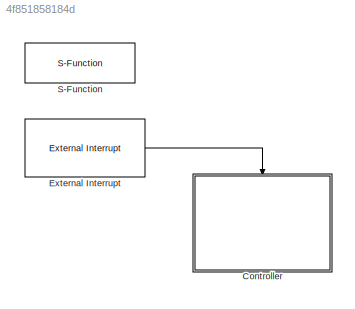
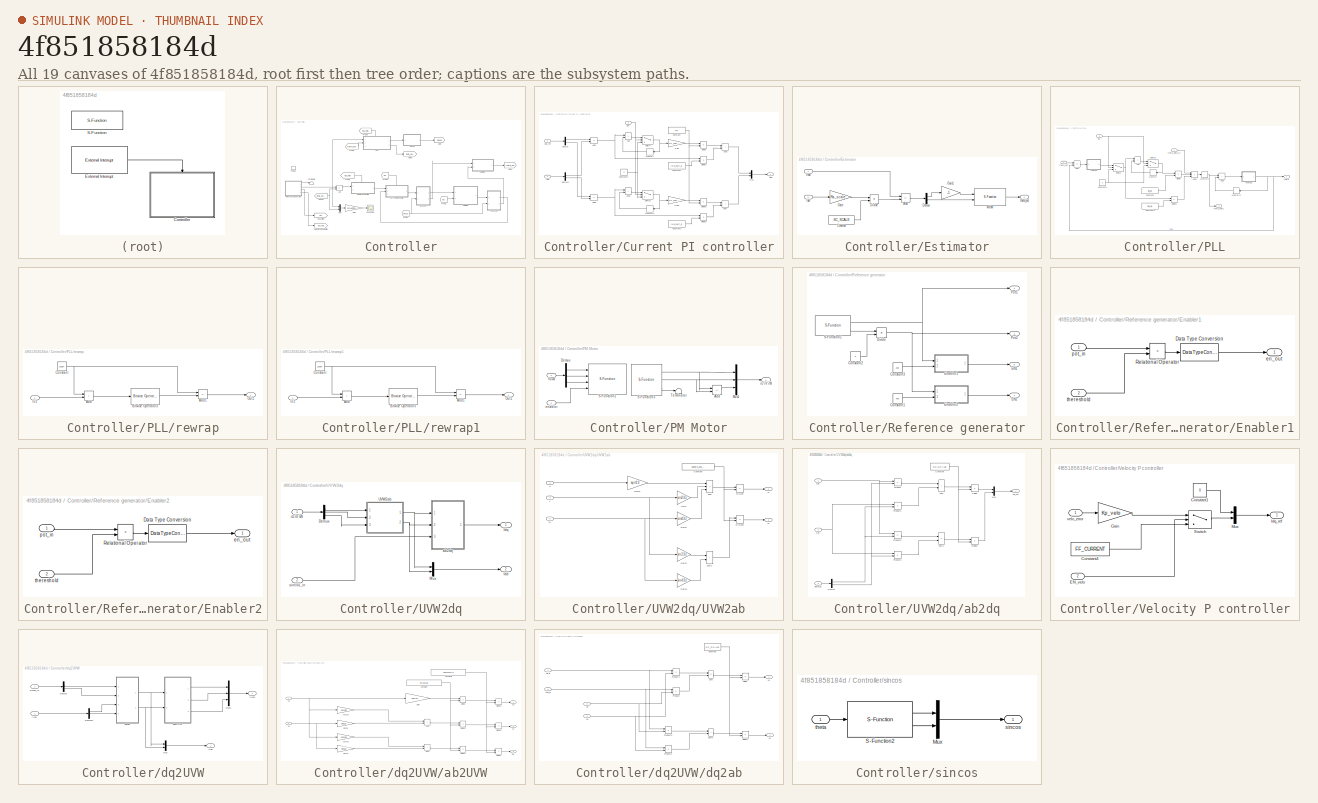
[diagram: thumbnail index - all 19 canvases of the model, root first then tree order]
MODEL slx_4f851858184d
KIND model
CONFIG AbsTol = auto
CONFIG EnableMultiTasking = off
CONFIG FixedStep = ts
CONFIG MaxStep = auto
CONFIG MinStep = auto
CONFIG RelTol = 1e-3
CONFIG SampleTimeConstraint = Unconstrained
CONFIG Solver = FixedStepDiscrete
CONFIG SolverName = FixedStepDiscrete
CONFIG StartTime = 0.0
CONFIG StopTime = inf
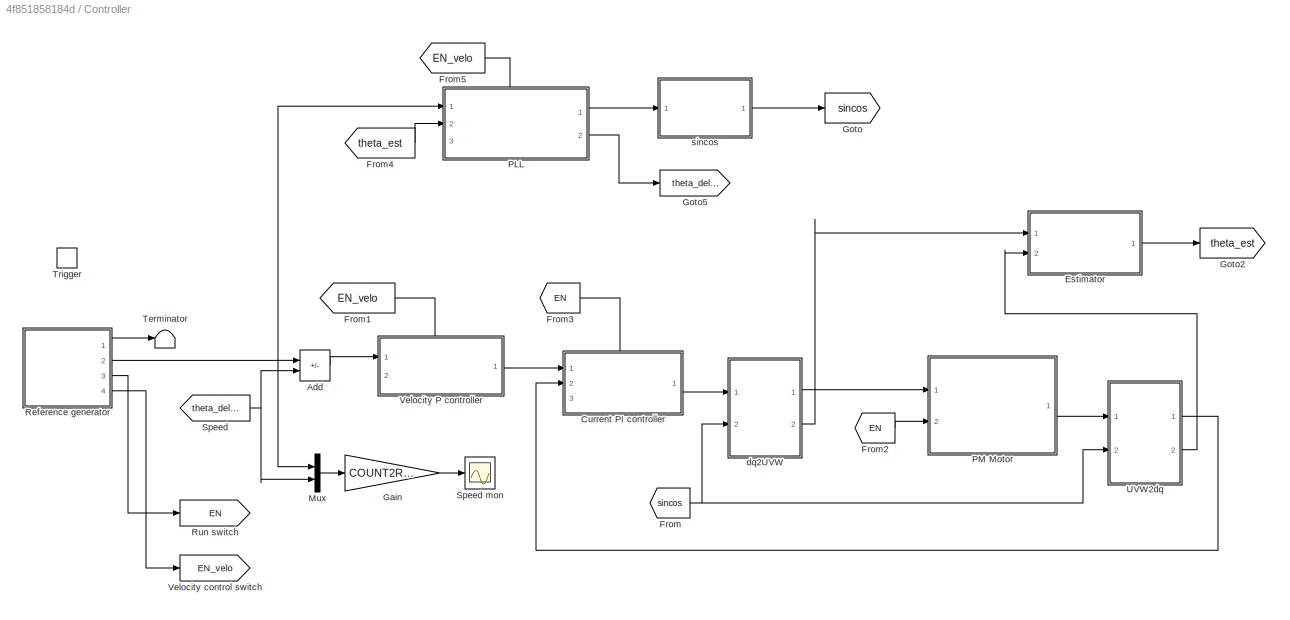
BLOCK [SubSystem] Controller
  Ports = [0, 0, 0, 1]
  RequestExecContextInheritance = off
BLOCK [Sum] Controller/Add
  IconShape = rectangular
  Inputs = +-
  Ports = [2, 1]
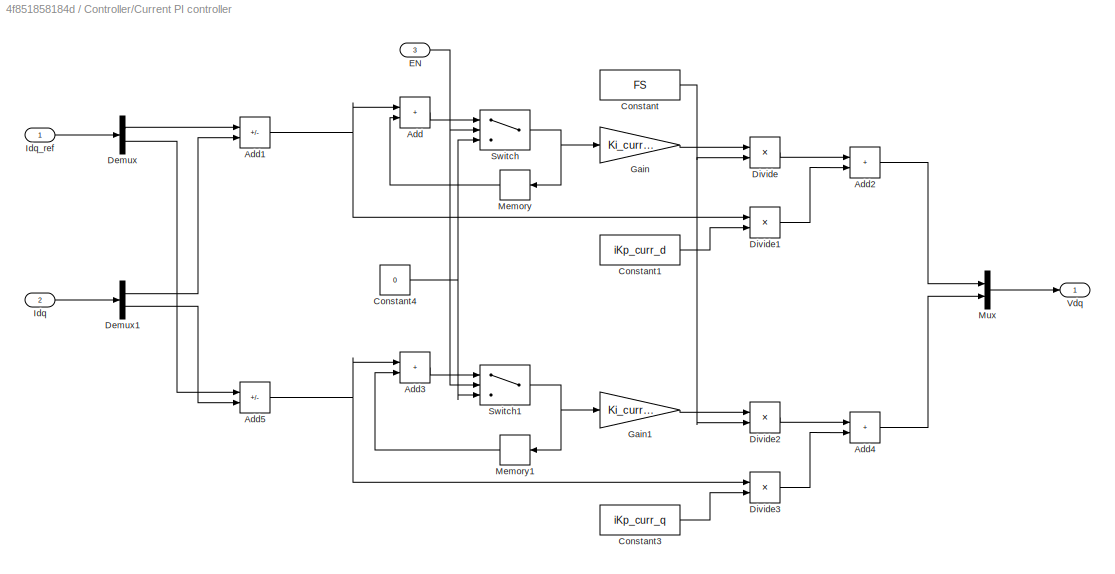
BLOCK [SubSystem] Controller/Current PI controller
  PortSchema = {"entries":[{"content":{"sides":[{"content":{"connectorIds":["In1","In2"]},"type":"ConnectorPlacement.EquallySpacedRectSide","uuid":"51bdd515-79d8-44f5-b943-076c1de5691d"},{"content":{"connectorIds":["Out1"],"side":"RIGHT"},"type":"ConnectorPlacement.EquallySpacedRectSide","uuid":"02ded229-b196-46a0-b1f1-559478ee2a5f"},{"content":{"connectorIds":["In3"],"side":"TOP"},"type":"ConnectorPlacement.Equ...<+253ch>
  Ports = [3, 1]
  RequestExecContextInheritance = off
BLOCK [Sum] Controller/Current PI controller/Add
  IconShape = rectangular
  Ports = [2, 1]
BLOCK [Sum] Controller/Current PI controller/Add1
  IconShape = rectangular
  Inputs = +-
  Ports = [2, 1]
BLOCK [Sum] Controller/Current PI controller/Add2
  IconShape = rectangular
  Ports = [2, 1]
BLOCK [Sum] Controller/Current PI controller/Add3
  IconShape = rectangular
  Ports = [2, 1]
BLOCK [Sum] Controller/Current PI controller/Add4
  IconShape = rectangular
  Ports = [2, 1]
BLOCK [Sum] Controller/Current PI controller/Add5
  IconShape = rectangular
  Inputs = +-
  Ports = [2, 1]
BLOCK [Constant] Controller/Current PI controller/Constant
  OutDataTypeStr = int32
  Value = FS
BLOCK [Constant] Controller/Current PI controller/Constant1
  OutDataTypeStr = int32
  Value = iKp_curr_d
BLOCK [Constant] Controller/Current PI controller/Constant3
  OutDataTypeStr = int32
  Value = iKp_curr_q
BLOCK [Constant] Controller/Current PI controller/Constant4
  OutDataTypeStr = int32
  Value = 0
BLOCK [Demux] Controller/Current PI controller/Demux
  Outputs = 2
  Ports = [1, 2]
BLOCK [Demux] Controller/Current PI controller/Demux1
  Outputs = 2
  Ports = [1, 2]
BLOCK [Product] Controller/Current PI controller/Divide
  Inputs = */
  Ports = [2, 1]
BLOCK [Product] Controller/Current PI controller/Divide1
  Inputs = */
  Ports = [2, 1]
BLOCK [Product] Controller/Current PI controller/Divide2
  Inputs = */
  Ports = [2, 1]
BLOCK [Product] Controller/Current PI controller/Divide3
  Inputs = */
  Ports = [2, 1]
BLOCK [Inport] Controller/Current PI controller/EN
  Port = 3
BLOCK [Gain] Controller/Current PI controller/Gain
  Gain = Ki_curr_d
  OutDataTypeStr = int32
  ParamDataTypeStr = int32
BLOCK [Gain] Controller/Current PI controller/Gain1
  Gain = Ki_curr_q
  OutDataTypeStr = int32
  ParamDataTypeStr = int32
BLOCK [Inport] Controller/Current PI controller/Idq
  Port = 2
BLOCK [Inport] Controller/Current PI controller/Idq_ref
BLOCK [Memory] Controller/Current PI controller/Memory
  InheritSampleTime = on
  NameLocation = top
BLOCK [Memory] Controller/Current PI controller/Memory1
  InheritSampleTime = on
  NameLocation = top
BLOCK [Mux] Controller/Current PI controller/Mux
  DisplayOption = bar
  Inputs = 2
  Ports = [2, 1]
BLOCK [Switch] Controller/Current PI controller/Switch
  Criteria = u2 > Threshold
  InputSameDT = off
  OutDataTypeStr = int32
  SaturateOnIntegerOverflow = off
BLOCK [Switch] Controller/Current PI controller/Switch1
  Criteria = u2 > Threshold
  InputSameDT = off
  OutDataTypeStr = int32
  SaturateOnIntegerOverflow = off
BLOCK [Outport] Controller/Current PI controller/Vdq
BLOCK [SubSystem] Controller/Estimator
  Ports = [2, 1]
  RequestExecContextInheritance = off
BLOCK [Sum] Controller/Estimator/Add
  IconShape = rectangular
  Inputs = +-
  Ports = [2, 1]
BLOCK [Constant] Controller/Estimator/Constant
  OutDataTypeStr = int32
  Value = SC_SCALE
BLOCK [Demux] Controller/Estimator/Demux
  Outputs = 2
  Ports = [1, 2]
BLOCK [Product] Controller/Estimator/Divide
  Inputs = */
  Ports = [2, 1]
BLOCK [Gain] Controller/Estimator/Gain
  Gain = Ra_scale
  OutDataTypeStr = int32
  ParamDataTypeStr = int32
BLOCK [Gain] Controller/Estimator/Gain1
  Gain = -1
  OutDataTypeStr = int32
  ParamDataTypeStr = int32
BLOCK [Inport] Controller/Estimator/Iab
  Port = 2
BLOCK [Inport] Controller/Estimator/Vab
BLOCK [S-Function] Controller/Estimator/arctan
  EnableBusSupport = off
  FunctionName = sfun_arctan
  Ports = [2, 1]
  SFcnIsStateOwnerBlock = off
  SFunctionDeploymentMode = off
BLOCK [Outport] Controller/Estimator/theta_est
BLOCK [From] Controller/From
  GotoTag = sincos
BLOCK [From] Controller/From1
  GotoTag = EN_velo
BLOCK [From] Controller/From2
  GotoTag = EN
BLOCK [From] Controller/From3
  GotoTag = EN
BLOCK [From] Controller/From4
  GotoTag = theta_est
BLOCK [From] Controller/From5
  GotoTag = EN_velo
BLOCK [Gain] Controller/Gain
  Gain = COUNT2RPM
  OutDataTypeStr = int32
  ParamDataTypeStr = int32
BLOCK [Goto] Controller/Goto
  GotoTag = sincos
BLOCK [Goto] Controller/Goto2
  GotoTag = theta_est
BLOCK [Goto] Controller/Goto5
  GotoTag = theta_delta
BLOCK [Mux] Controller/Mux
  DisplayOption = bar
  Inputs = 2
  Ports = [2, 1]
BLOCK [SubSystem] Controller/PLL
  PortSchema = {"entries":[{"content":{"sides":[{"content":{"connectorIds":["In1","In2"]},"type":"ConnectorPlacement.EquallySpacedRectSide","uuid":"c1279200-642a-4817-bff2-49f1fc45cae9"},{"content":{"connectorIds":["Out1","Out2"],"side":"RIGHT"},"type":"ConnectorPlacement.EquallySpacedRectSide","uuid":"60873783-c9ec-4a70-a078-e4f3fd5ab03e"},{"content":{"connectorIds":["In3"],"side":"TOP"},"type":"ConnectorPlacem...<+260ch>
  Ports = [3, 2]
  RequestExecContextInheritance = off
BLOCK [Sum] Controller/PLL/Add
  IconShape = rectangular
  Ports = [2, 1]
BLOCK [Sum] Controller/PLL/Add1
  IconShape = rectangular
  Inputs = +-
  Ports = [2, 1]
BLOCK [Sum] Controller/PLL/Add2
  IconShape = rectangular
  Inputs = +++
  Ports = [3, 1]
BLOCK [Sum] Controller/PLL/Add3
  IconShape = rectangular
  Ports = [2, 1]
BLOCK [Constant] Controller/PLL/Constant
  OutDataTypeStr = int32
  Value = iKi_pll
BLOCK [Constant] Controller/PLL/Constant3
  OutDataTypeStr = int32
  Value = iKp_pll
BLOCK [Constant] Controller/PLL/Constant4
  OutDataTypeStr = int32
  Value = 0
BLOCK [Product] Controller/PLL/Divide
  Inputs = */
  Ports = [2, 1]
BLOCK [Product] Controller/PLL/Divide1
  Inputs = */
  Ports = [2, 1]
BLOCK [Inport] Controller/PLL/EN
  Port = 3
BLOCK [Memory] Controller/PLL/Memory
  InheritSampleTime = on
  NameLocation = top
BLOCK [Memory] Controller/PLL/Memory1
  InheritSampleTime = on
  NameLocation = top
BLOCK [Memory] Controller/PLL/Memory2
  InheritSampleTime = on
BLOCK [Switch] Controller/PLL/Switch
  Criteria = u2 > Threshold
  InputSameDT = off
  OutDataTypeStr = int32
  SaturateOnIntegerOverflow = off
BLOCK [Switch] Controller/PLL/Switch1
  Criteria = u2 > Threshold
  InputSameDT = off
  OutDataTypeStr = int32
  SaturateOnIntegerOverflow = off
BLOCK [SubSystem] Controller/PLL/rewrap
  Ports = [1, 1]
  RequestExecContextInheritance = off
BLOCK [Sum] Controller/PLL/rewrap/Add
  IconShape = rectangular
  Ports = [2, 1]
BLOCK [Sum] Controller/PLL/rewrap/Add1
  IconShape = rectangular
  Inputs = -+
  Ports = [2, 1]
BLOCK [Reference] Controller/PLL/rewrap/Bitwise Operator3  REF=simulink/Logic and Bit
Operations/Bitwise
Operator
  Ports = [1, 1]
  SourceBlock = simulink/Logic and Bit\nOperations/Bitwise\nOperator
  SourceProductBaseCode = SL
  SourceType = Bitwise Operator
BLOCK [Constant] Controller/PLL/rewrap/Constant
  OutDataTypeStr = int32
  Value = 16384
BLOCK [Inport] Controller/PLL/rewrap/In1
BLOCK [Outport] Controller/PLL/rewrap/Out1
BLOCK [SubSystem] Controller/PLL/rewrap1
  Ports = [1, 1]
  RequestExecContextInheritance = off
BLOCK [Sum] Controller/PLL/rewrap1/Add
  IconShape = rectangular
  Ports = [2, 1]
BLOCK [Sum] Controller/PLL/rewrap1/Add1
  IconShape = rectangular
  Inputs = -+
  Ports = [2, 1]
BLOCK [Reference] Controller/PLL/rewrap1/Bitwise Operator3  REF=simulink/Logic and Bit
Operations/Bitwise
Operator
  Ports = [1, 1]
  SourceBlock = simulink/Logic and Bit\nOperations/Bitwise\nOperator
  SourceProductBaseCode = SL
  SourceType = Bitwise Operator
BLOCK [Constant] Controller/PLL/rewrap1/Constant
  OutDataTypeStr = int32
  Value = 16384
BLOCK [Inport] Controller/PLL/rewrap1/In1
BLOCK [Outport] Controller/PLL/rewrap1/Out1
BLOCK [Outport] Controller/PLL/theta
BLOCK [Outport] Controller/PLL/theta_delta
  Port = 2
BLOCK [Inport] Controller/PLL/theta_delta_ff
BLOCK [Inport] Controller/PLL/theta_est
  Port = 2
BLOCK [SubSystem] Controller/PM Motor
  Ports = [2, 1]
  RequestExecContextInheritance = off
BLOCK [Sum] Controller/PM Motor/Add
  IconShape = rectangular
  Inputs = --
  Ports = [2, 1]
BLOCK [Demux] Controller/PM Motor/Demux
  Outputs = 3
  Ports = [1, 3]
BLOCK [Mux] Controller/PM Motor/Mux1
  DisplayOption = bar
  Inputs = 3
  Ports = [3, 1]
BLOCK [S-Function] Controller/PM Motor/S-Function2
  EnableBusSupport = off
  FunctionName = sfun_pwmgen
  Ports = [4]
  SFcnIsStateOwnerBlock = off
  SFunctionDeploymentMode = off
BLOCK [S-Function] Controller/PM Motor/S-Function3
  EnableBusSupport = off
  FunctionName = sfun_read_current
  Ports = [0, 3]
  SFcnIsStateOwnerBlock = off
  SFunctionDeploymentMode = off
BLOCK [Terminator] Controller/PM Motor/Terminator
BLOCK [Inport] Controller/PM Motor/Vuvw
BLOCK [Inport] Controller/PM Motor/enabler
  Port = 2
BLOCK [Outport] Controller/PM Motor/iU iV iW
BLOCK [SubSystem] Controller/Reference generator
  Ports = [0, 4]
  RequestExecContextInheritance = off
BLOCK [Constant] Controller/Reference generator/Constant1
  OutDataTypeStr = int32
  Value = 400
BLOCK [Constant] Controller/Reference generator/Constant2
  OutDataTypeStr = int32
  Value = 2
BLOCK [Constant] Controller/Reference generator/Constant3
  OutDataTypeStr = int32
  Value = 200
BLOCK [Product] Controller/Reference generator/Divide
  Inputs = */
  OutDataTypeStr = int32
  Ports = [2, 1]
BLOCK [Outport] Controller/Reference generator/EN1
  Port = 3
BLOCK [Outport] Controller/Reference generator/EN2
  Port = 4
BLOCK [SubSystem] Controller/Reference generator/Enabler1
  Ports = [2, 1]
  RequestExecContextInheritance = off
BLOCK [DataTypeConversion] Controller/Reference generator/Enabler1/Data Type Conversion
  OutDataTypeStr = int32
  RndMeth = Floor
  SaturateOnIntegerOverflow = off
BLOCK [RelationalOperator] Controller/Reference generator/Enabler1/Relational Operator
  InputSameDT = off
  Operator = >
  OutDataTypeStr = boolean
  Ports = [2, 1]
  RndMeth = Simplest
BLOCK [Outport] Controller/Reference generator/Enabler1/en_out
BLOCK [Inport] Controller/Reference generator/Enabler1/pot_in
BLOCK [Inport] Controller/Reference generator/Enabler1/thereshold
  Port = 2
BLOCK [SubSystem] Controller/Reference generator/Enabler2
  Ports = [2, 1]
  RequestExecContextInheritance = off
BLOCK [DataTypeConversion] Controller/Reference generator/Enabler2/Data Type Conversion
  OutDataTypeStr = int32
  RndMeth = Floor
  SaturateOnIntegerOverflow = off
BLOCK [RelationalOperator] Controller/Reference generator/Enabler2/Relational Operator
  InputSameDT = off
  Operator = >
  OutDataTypeStr = boolean
  Ports = [2, 1]
  RndMeth = Simplest
BLOCK [Outport] Controller/Reference generator/Enabler2/en_out
BLOCK [Inport] Controller/Reference generator/Enabler2/pot_in
BLOCK [Inport] Controller/Reference generator/Enabler2/thereshold
  Port = 2
BLOCK [Outport] Controller/Reference generator/Pot1
BLOCK [Outport] Controller/Reference generator/Pot2
  Port = 2
BLOCK [S-Function] Controller/Reference generator/S-Function1
  EnableBusSupport = off
  FunctionName = sfun_read_pot
  Ports = [0, 2]
  SFcnIsStateOwnerBlock = off
  SFunctionDeploymentMode = off
BLOCK [Goto] Controller/Run switch
  GotoTag = EN
BLOCK [From] Controller/Speed
  GotoTag = theta_delta
BLOCK [Scope] Controller/Speed mon
  Floating = off
  NumInputPorts = 1
  Ports = [1]
  ScopeSpecificationString = Simulink.scopes.TimeScopeBlockCfg('CurrentConfiguration', extmgr.ConfigurationSet(extmgr.Configuration('Core','General UI',true),extmgr.Configuration('Core','Source UI',true),extmgr.Configuration('Sources','WiredSimulink',true),extmgr.Configuration('Visuals','Time Domain',true,'SerializedDisplays',{struct('MinYLimReal','0','MaxYLimReal','10000','YLabelReal','','MinYLimMag','4814.375','MaxYLimMag',...<+1442ch>
BLOCK [Terminator] Controller/Terminator
BLOCK [TriggerPort] Controller/Trigger
  PortDimensions = 1
  Ports = []
  StatesWhenEnabling = held
  TriggerType = function-call
  VariantControl = Variant
BLOCK [SubSystem] Controller/UVW2dq
  Ports = [2, 2]
  RequestExecContextInheritance = off
BLOCK [Demux] Controller/UVW2dq/Demux
  Outputs = 3
  Ports = [1, 3]
BLOCK [Outport] Controller/UVW2dq/Iab
  Port = 2
BLOCK [Outport] Controller/UVW2dq/Idq
BLOCK [Mux] Controller/UVW2dq/Mux
  DisplayOption = bar
  Inputs = 2
  Ports = [2, 1]
BLOCK [SubSystem] Controller/UVW2dq/UVW2ab
  Ports = [3, 2]
  RequestExecContextInheritance = off
BLOCK [Constant] Controller/UVW2dq/UVW2ab/Constant
  OutDataTypeStr = int32
  Value = adgain_and_ivscale
BLOCK [Product] Controller/UVW2dq/UVW2ab/Divide
  Inputs = */
  OutDataTypeStr = int32
  Ports = [2, 1]
BLOCK [Product] Controller/UVW2dq/UVW2ab/Divide2
  Inputs = */
  OutDataTypeStr = int32
  Ports = [2, 1]
BLOCK [Gain] Controller/UVW2dq/UVW2ab/Gain
  Gain = cos23z
  OutDataTypeStr = int32
  ParamDataTypeStr = int32
BLOCK [Gain] Controller/UVW2dq/UVW2ab/Gain1
  Gain = cos43z
  OutDataTypeStr = int32
  ParamDataTypeStr = int32
BLOCK [Gain] Controller/UVW2dq/UVW2ab/Gain2
  Gain = sin23z
  OutDataTypeStr = int32
  ParamDataTypeStr = int32
BLOCK [Gain] Controller/UVW2dq/UVW2ab/Gain3
  Gain = sin43z
  OutDataTypeStr = int32
  ParamDataTypeStr = int32
BLOCK [Gain] Controller/UVW2dq/UVW2ab/Gain4
  Gain = sqrt23
  OutDataTypeStr = int32
  ParamDataTypeStr = int32
BLOCK [Outport] Controller/UVW2dq/UVW2ab/Ia
BLOCK [Outport] Controller/UVW2dq/UVW2ab/Ib
  Port = 2
BLOCK [Sum] Controller/UVW2dq/UVW2ab/Sum
  AccumDataTypeStr = int32
  IconShape = rectangular
  Inputs = +++
  OutDataTypeStr = int32
  Ports = [3, 1]
BLOCK [Sum] Controller/UVW2dq/UVW2ab/Sum1
  AccumDataTypeStr = int32
  IconShape = rectangular
  OutDataTypeStr = int32
  Ports = [2, 1]
BLOCK [Inport] Controller/UVW2dq/UVW2ab/U
BLOCK [Inport] Controller/UVW2dq/UVW2ab/V
  Port = 2
BLOCK [Inport] Controller/UVW2dq/UVW2ab/W
  Port = 3
BLOCK [SubSystem] Controller/UVW2dq/ab2dq
  Ports = [3, 1]
  RequestExecContextInheritance = off
BLOCK [Constant] Controller/UVW2dq/ab2dq/Constant
  OutDataTypeStr = int32
  Value = SC_SCALE
BLOCK [Demux] Controller/UVW2dq/ab2dq/Demux
  Outputs = 2
  Ports = [1, 2]
BLOCK [Product] Controller/UVW2dq/ab2dq/Divide
  Inputs = */
  OutDataTypeStr = int32
  Ports = [2, 1]
BLOCK [Product] Controller/UVW2dq/ab2dq/Divide1
  Inputs = */
  OutDataTypeStr = int32
  Ports = [2, 1]
BLOCK [Mux] Controller/UVW2dq/ab2dq/Mux
  DisplayOption = bar
  Inputs = 2
  Ports = [2, 1]
BLOCK [Product] Controller/UVW2dq/ab2dq/Product
  OutDataTypeStr = int32
  Ports = [2, 1]
BLOCK [Product] Controller/UVW2dq/ab2dq/Product1
  OutDataTypeStr = int32
  Ports = [2, 1]
BLOCK [Product] Controller/UVW2dq/ab2dq/Product2
  OutDataTypeStr = int32
  Ports = [2, 1]
BLOCK [Product] Controller/UVW2dq/ab2dq/Product3
  OutDataTypeStr = int32
  Ports = [2, 1]
BLOCK [Sum] Controller/UVW2dq/ab2dq/Sum
  IconShape = rectangular
  Ports = [2, 1]
BLOCK [Sum] Controller/UVW2dq/ab2dq/Sum1
  IconShape = rectangular
  Inputs = -+
  Ports = [2, 1]
BLOCK [Inport] Controller/UVW2dq/ab2dq/a_in
BLOCK [Inport] Controller/UVW2dq/ab2dq/b_in
  Port = 2
BLOCK [Outport] Controller/UVW2dq/ab2dq/dq_out
BLOCK [Inport] Controller/UVW2dq/ab2dq/sincos_in
  Port = 3
BLOCK [Inport] Controller/UVW2dq/iU iV iW
BLOCK [Inport] Controller/UVW2dq/sincos_in
  Port = 2
BLOCK [SubSystem] Controller/Velocity P controller
  PortSchema = {"entries":[{"content":{"sides":[{"content":{"connectorIds":["In1"]},"type":"ConnectorPlacement.EquallySpacedRectSide","uuid":"ec985efa-ceb5-40b6-8715-0b6e8d029389"},{"content":{"connectorIds":["Out1"],"side":"RIGHT"},"type":"ConnectorPlacement.EquallySpacedRectSide","uuid":"25d854cf-6db0-4509-b167-323bc7ab570a"},{"content":{"connectorIds":["In2"],"side":"TOP"},"type":"ConnectorPlacement.EquallySp...<+247ch>
  Ports = [2, 1]
  RequestExecContextInheritance = off
BLOCK [Constant] Controller/Velocity P controller/Constant1
  OutDataTypeStr = int32
  Value = 0
BLOCK [Constant] Controller/Velocity P controller/Constant4
  OutDataTypeStr = int32
  Value = FF_CURRENT
BLOCK [Inport] Controller/Velocity P controller/EN_velo
  Port = 2
BLOCK [Gain] Controller/Velocity P controller/Gain
  Gain = Kp_velo
  OutDataTypeStr = int32
  ParamDataTypeStr = int32
BLOCK [Outport] Controller/Velocity P controller/Idq_ref
BLOCK [Mux] Controller/Velocity P controller/Mux
  DisplayOption = bar
  Inputs = 2
  Ports = [2, 1]
BLOCK [Switch] Controller/Velocity P controller/Switch
  Criteria = u2 > Threshold
  InputSameDT = off
  OutDataTypeStr = int32
  SaturateOnIntegerOverflow = off
BLOCK [Inport] Controller/Velocity P controller/velo_error
BLOCK [Goto] Controller/Velocity control switch
  GotoTag = EN_velo
BLOCK [SubSystem] Controller/dq2UVW
  Ports = [2, 2]
  RequestExecContextInheritance = off
BLOCK [Demux] Controller/dq2UVW/Demux
  Outputs = 2
  Ports = [1, 2]
BLOCK [Demux] Controller/dq2UVW/Demux1
  Outputs = 2
  Ports = [1, 2]
BLOCK [Mux] Controller/dq2UVW/Mux
  DisplayOption = bar
  Inputs = 2
  Ports = [2, 1]
BLOCK [Mux] Controller/dq2UVW/Mux1
  DisplayOption = bar
  Inputs = 3
  Ports = [3, 1]
BLOCK [Outport] Controller/dq2UVW/Vab
  Port = 2
BLOCK [Inport] Controller/dq2UVW/Vdq
BLOCK [Outport] Controller/dq2UVW/Vuvw
BLOCK [SubSystem] Controller/dq2UVW/ab2UVW
  Ports = [2, 3]
  RequestExecContextInheritance = off
BLOCK [Sum] Controller/dq2UVW/ab2UVW/Add
  IconShape = rectangular
  Ports = [2, 1]
BLOCK [Sum] Controller/dq2UVW/ab2UVW/Add1
  IconShape = rectangular
  Ports = [2, 1]
BLOCK [Constant] Controller/dq2UVW/ab2UVW/Constant
  OutDataTypeStr = int32
  Value = SC_SCALE
BLOCK [Constant] Controller/dq2UVW/ab2UVW/Constant1
  OutDataTypeStr = int32
  Value = -DUTY2VOLT
BLOCK [Product] Controller/dq2UVW/ab2UVW/Divide
  Inputs = */
  OutDataTypeStr = int32
  Ports = [2, 1]
BLOCK [Product] Controller/dq2UVW/ab2UVW/Divide1
  Inputs = */
  OutDataTypeStr = int32
  Ports = [2, 1]
BLOCK [Product] Controller/dq2UVW/ab2UVW/Divide2
  Inputs = */
  OutDataTypeStr = int32
  Ports = [2, 1]
BLOCK [Product] Controller/dq2UVW/ab2UVW/Divide3
  Inputs = */
  OutDataTypeStr = int32
  Ports = [2, 1]
BLOCK [Product] Controller/dq2UVW/ab2UVW/Divide4
  Inputs = */
  OutDataTypeStr = int32
  Ports = [2, 1]
BLOCK [Product] Controller/dq2UVW/ab2UVW/Divide5
  Inputs = */
  OutDataTypeStr = int32
  Ports = [2, 1]
BLOCK [Gain] Controller/dq2UVW/ab2UVW/Gain
  Gain = sqrt23
  OutDataTypeStr = int32
  ParamDataTypeStr = int32
BLOCK [Inport] Controller/dq2UVW/ab2UVW/Va
BLOCK [Inport] Controller/dq2UVW/ab2UVW/Vb
  Port = 2
BLOCK [Gain] Controller/dq2UVW/ab2UVW/cos23z
  Gain = cos23z
  OutDataTypeStr = int32
  ParamDataTypeStr = int32
BLOCK [Gain] Controller/dq2UVW/ab2UVW/cos43z
  Gain = cos43z
  OutDataTypeStr = int32
  ParamDataTypeStr = int32
BLOCK [Outport] Controller/dq2UVW/ab2UVW/du
BLOCK [Outport] Controller/dq2UVW/ab2UVW/dv
  Port = 2
BLOCK [Outport] Controller/dq2UVW/ab2UVW/dw
  Port = 3
BLOCK [Gain] Controller/dq2UVW/ab2UVW/sin23z
  Gain = sin23z
  OutDataTypeStr = int32
  ParamDataTypeStr = int32
BLOCK [Gain] Controller/dq2UVW/ab2UVW/sin43z
  Gain = sin43z
  OutDataTypeStr = int32
  ParamDataTypeStr = int32
BLOCK [SubSystem] Controller/dq2UVW/dq2ab
  Ports = [4, 2]
  RequestExecContextInheritance = off
BLOCK [Constant] Controller/dq2UVW/dq2ab/Constant
  OutDataTypeStr = int32
  Value = SC_SCALE
BLOCK [Product] Controller/dq2UVW/dq2ab/Divide
  Inputs = */
  OutDataTypeStr = int32
  Ports = [2, 1]
BLOCK [Product] Controller/dq2UVW/dq2ab/Divide1
  Inputs = */
  OutDataTypeStr = int32
  Ports = [2, 1]
BLOCK [Product] Controller/dq2UVW/dq2ab/Product
  OutDataTypeStr = int32
  Ports = [2, 1]
BLOCK [Product] Controller/dq2UVW/dq2ab/Product1
  OutDataTypeStr = int32
  Ports = [2, 1]
BLOCK [Product] Controller/dq2UVW/dq2ab/Product2
  OutDataTypeStr = int32
  Ports = [2, 1]
BLOCK [Product] Controller/dq2UVW/dq2ab/Product3
  OutDataTypeStr = int32
  Ports = [2, 1]
BLOCK [Sum] Controller/dq2UVW/dq2ab/Sum
  IconShape = rectangular
  Inputs = -+
  Ports = [2, 1]
BLOCK [Sum] Controller/dq2UVW/dq2ab/Sum1
  IconShape = rectangular
  Ports = [2, 1]
BLOCK [Outport] Controller/dq2UVW/dq2ab/Va
BLOCK [Outport] Controller/dq2UVW/dq2ab/Vb
  Port = 2
BLOCK [Inport] Controller/dq2UVW/dq2ab/Vd
  Port = 3
BLOCK [Inport] Controller/dq2UVW/dq2ab/Vq
  Port = 4
BLOCK [Inport] Controller/dq2UVW/dq2ab/cos_in
  Port = 2
BLOCK [Inport] Controller/dq2UVW/dq2ab/sin_in
BLOCK [Inport] Controller/dq2UVW/sincos_in
  Port = 2
BLOCK [SubSystem] Controller/sincos
  Ports = [1, 1]
  RequestExecContextInheritance = off
BLOCK [Mux] Controller/sincos/Mux
  DisplayOption = bar
  Inputs = 2
  Ports = [2, 1]
BLOCK [S-Function] Controller/sincos/S-Function2
  EnableBusSupport = off
  FunctionName = sfun_sincos
  Ports = [1, 2]
  SFcnIsStateOwnerBlock = off
  SFunctionDeploymentMode = off
BLOCK [Outport] Controller/sincos/sincos
BLOCK [Inport] Controller/sincos/theta
BLOCK [Reference] External Interrupt  REF=arduinolib/External Interrupt
  Ports = [0, 1]
  SourceBlock = arduinolib/External Interrupt
  SourceProductBaseCode = ARDUINO
  SourceType = Arduino Interrupt Block
BLOCK [S-Function] S-Function
  EnableBusSupport = off
  FunctionName = sfun_pwm_setup
  Ports = []
  SFcnIsStateOwnerBlock = off
  SFunctionDeploymentMode = off
LINE Controller/Add:1 -> Controller/Velocity P controller:1
NET Controller/Current PI controller/Add1:1 -> Controller/Current PI controller/Add:1, Controller/Current PI controller/Divide1:1
LINE Controller/Current PI controller/Add2:1 -> Controller/Current PI controller/Mux:1
LINE Controller/Current PI controller/Add3:1 -> Controller/Current PI controller/Switch1:1
LINE Controller/Current PI controller/Add4:1 -> Controller/Current PI controller/Mux:2
NET Controller/Current PI controller/Add5:1 -> Controller/Current PI controller/Add3:1, Controller/Current PI controller/Divide3:1
LINE Controller/Current PI controller/Add:1 -> Controller/Current PI controller/Switch:1
LINE Controller/Current PI controller/Constant1:1 -> Controller/Current PI controller/Divide1:2
LINE Controller/Current PI controller/Constant3:1 -> Controller/Current PI controller/Divide3:2
NET Controller/Current PI controller/Constant4:1 -> Controller/Current PI controller/Switch1:3, Controller/Current PI controller/Switch:3
NET Controller/Current PI controller/Constant:1 -> Controller/Current PI controller/Divide2:2, Controller/Current PI controller/Divide:2
LINE Controller/Current PI controller/Demux1:1 -> Controller/Current PI controller/Add1:2
LINE Controller/Current PI controller/Demux1:2 -> Controller/Current PI controller/Add5:2
LINE Controller/Current PI controller/Demux:1 -> Controller/Current PI controller/Add1:1
LINE Controller/Current PI controller/Demux:2 -> Controller/Current PI controller/Add5:1
LINE Controller/Current PI controller/Divide1:1 -> Controller/Current PI controller/Add2:2
LINE Controller/Current PI controller/Divide2:1 -> Controller/Current PI controller/Add4:1
LINE Controller/Current PI controller/Divide3:1 -> Controller/Current PI controller/Add4:2
LINE Controller/Current PI controller/Divide:1 -> Controller/Current PI controller/Add2:1
NET Controller/Current PI controller/EN:1 -> Controller/Current PI controller/Switch1:2, Controller/Current PI controller/Switch:2
LINE Controller/Current PI controller/Gain1:1 -> Controller/Current PI controller/Divide2:1
LINE Controller/Current PI controller/Gain:1 -> Controller/Current PI controller/Divide:1
LINE Controller/Current PI controller/Idq:1 -> Controller/Current PI controller/Demux1:1
LINE Controller/Current PI controller/Idq_ref:1 -> Controller/Current PI controller/Demux:1
LINE Controller/Current PI controller/Memory1:1 -> Controller/Current PI controller/Add3:2
LINE Controller/Current PI controller/Memory:1 -> Controller/Current PI controller/Add:2
LINE Controller/Current PI controller/Mux:1 -> Controller/Current PI controller/Vdq:1
NET Controller/Current PI controller/Switch1:1 -> Controller/Current PI controller/Gain1:1, Controller/Current PI controller/Memory1:1
NET Controller/Current PI controller/Switch:1 -> Controller/Current PI controller/Gain:1, Controller/Current PI controller/Memory:1
LINE Controller/Current PI controller:1 -> Controller/dq2UVW:1
LINE Controller/Estimator/Add:1 -> Controller/Estimator/Demux:1
LINE Controller/Estimator/Constant:1 -> Controller/Estimator/Divide:2
LINE Controller/Estimator/Demux:1 -> Controller/Estimator/Gain1:1
LINE Controller/Estimator/Demux:2 -> Controller/Estimator/arctan:2
LINE Controller/Estimator/Divide:1 -> Controller/Estimator/Add:2
LINE Controller/Estimator/Gain1:1 -> Controller/Estimator/arctan:1
LINE Controller/Estimator/Gain:1 -> Controller/Estimator/Divide:1
LINE Controller/Estimator/Iab:1 -> Controller/Estimator/Gain:1
LINE Controller/Estimator/Vab:1 -> Controller/Estimator/Add:1
LINE Controller/Estimator/arctan:1 -> Controller/Estimator/theta_est:1
LINE Controller/Estimator:1 -> Controller/Goto2:1
LINE Controller/From1:1 -> Controller/Velocity P controller:2
LINE Controller/From2:1 -> Controller/PM Motor:2
LINE Controller/From3:1 -> Controller/Current PI controller:3
LINE Controller/From4:1 -> Controller/PLL:2
LINE Controller/From5:1 -> Controller/PLL:3
NET Controller/From:1 -> Controller/UVW2dq:2, Controller/dq2UVW:2
LINE Controller/Gain:1 -> Controller/Speed mon:1
LINE Controller/Mux:1 -> Controller/Gain:1
LINE Controller/PLL/Add1:1 -> Controller/PLL/rewrap:1
LINE Controller/PLL/Add2:1 -> Controller/PLL/Memory1:1
LINE Controller/PLL/Add3:1 -> Controller/PLL/rewrap1:1
LINE Controller/PLL/Add:1 -> Controller/PLL/Switch1:1
LINE Controller/PLL/Constant3:1 -> Controller/PLL/Divide1:2
NET Controller/PLL/Constant4:1 -> Controller/PLL/Switch1:3, Controller/PLL/Switch:3
LINE Controller/PLL/Constant:1 -> Controller/PLL/Divide:2
LINE Controller/PLL/Divide1:1 -> Controller/PLL/Add2:3
LINE Controller/PLL/Divide:1 -> Controller/PLL/Add2:2
NET Controller/PLL/EN:1 -> Controller/PLL/Switch1:2, Controller/PLL/Switch:2
NET Controller/PLL/Memory1:1 -> Controller/PLL/Add3:1, Controller/PLL/theta_delta:1
LINE Controller/PLL/Memory2:1 -> Controller/PLL/Add3:2
LINE Controller/PLL/Memory:1 -> Controller/PLL/Add:2
NET Controller/PLL/Switch1:1 -> Controller/PLL/Divide:1, Controller/PLL/Memory:1
NET Controller/PLL/Switch:1 -> Controller/PLL/Add:1, Controller/PLL/Divide1:1
LINE Controller/PLL/rewrap/Add1:1 -> Controller/PLL/rewrap/Out1:1
LINE Controller/PLL/rewrap/Add:1 -> Controller/PLL/rewrap/Bitwise Operator3:1
LINE Controller/PLL/rewrap/Bitwise Operator3:1 -> Controller/PLL/rewrap/Add1:2
NET Controller/PLL/rewrap/Constant:1 -> Controller/PLL/rewrap/Add1:1, Controller/PLL/rewrap/Add:1
LINE Controller/PLL/rewrap/In1:1 -> Controller/PLL/rewrap/Add:2
LINE Controller/PLL/rewrap1/Add1:1 -> Controller/PLL/rewrap1/Out1:1
LINE Controller/PLL/rewrap1/Add:1 -> Controller/PLL/rewrap1/Bitwise Operator3:1
LINE Controller/PLL/rewrap1/Bitwise Operator3:1 -> Controller/PLL/rewrap1/Add1:2
NET Controller/PLL/rewrap1/Constant:1 -> Controller/PLL/rewrap1/Add1:1, Controller/PLL/rewrap1/Add:1
LINE Controller/PLL/rewrap1/In1:1 -> Controller/PLL/rewrap1/Add:2
NET Controller/PLL/rewrap1:1 -> Controller/PLL/Add1:2, Controller/PLL/Memory2:1, Controller/PLL/theta:1
LINE Controller/PLL/rewrap:1 -> Controller/PLL/Switch:1
LINE Controller/PLL/theta_delta_ff:1 -> Controller/PLL/Add2:1
LINE Controller/PLL/theta_est:1 -> Controller/PLL/Add1:1
LINE Controller/PLL:1 -> Controller/sincos:1
LINE Controller/PLL:2 -> Controller/Goto5:1
LINE Controller/PM Motor/Add:1 -> Controller/PM Motor/Mux1:3
LINE Controller/PM Motor/Demux:1 -> Controller/PM Motor/S-Function2:1
LINE Controller/PM Motor/Demux:2 -> Controller/PM Motor/S-Function2:2
LINE Controller/PM Motor/Demux:3 -> Controller/PM Motor/S-Function2:3
LINE Controller/PM Motor/Mux1:1 -> Controller/PM Motor/iU iV iW:1
NET Controller/PM Motor/S-Function3:1 -> Controller/PM Motor/Add:1, Controller/PM Motor/Mux1:1
NET Controller/PM Motor/S-Function3:2 -> Controller/PM Motor/Add:2, Controller/PM Motor/Mux1:2
LINE Controller/PM Motor/S-Function3:3 -> Controller/PM Motor/Terminator:1
LINE Controller/PM Motor/Vuvw:1 -> Controller/PM Motor/Demux:1
LINE Controller/PM Motor/enabler:1 -> Controller/PM Motor/S-Function2:4
LINE Controller/PM Motor:1 -> Controller/UVW2dq:1
LINE Controller/Reference generator/Constant1:1 -> Controller/Reference generator/Enabler2:2
LINE Controller/Reference generator/Constant2:1 -> Controller/Reference generator/Divide:2
LINE Controller/Reference generator/Constant3:1 -> Controller/Reference generator/Enabler1:2
NET Controller/Reference generator/Divide:1 -> Controller/Reference generator/Enabler2:1, Controller/Reference generator/Pot2:1
LINE Controller/Reference generator/Enabler1/Data Type Conversion:1 -> Controller/Reference generator/Enabler1/en_out:1
LINE Controller/Reference generator/Enabler1/Relational Operator:1 -> Controller/Reference generator/Enabler1/Data Type Conversion:1
LINE Controller/Reference generator/Enabler1/pot_in:1 -> Controller/Reference generator/Enabler1/Relational Operator:1
LINE Controller/Reference generator/Enabler1/thereshold:1 -> Controller/Reference generator/Enabler1/Relational Operator:2
LINE Controller/Reference generator/Enabler1:1 -> Controller/Reference generator/EN1:1
LINE Controller/Reference generator/Enabler2/Data Type Conversion:1 -> Controller/Reference generator/Enabler2/en_out:1
LINE Controller/Reference generator/Enabler2/Relational Operator:1 -> Controller/Reference generator/Enabler2/Data Type Conversion:1
LINE Controller/Reference generator/Enabler2/pot_in:1 -> Controller/Reference generator/Enabler2/Relational Operator:1
LINE Controller/Reference generator/Enabler2/thereshold:1 -> Controller/Reference generator/Enabler2/Relational Operator:2
LINE Controller/Reference generator/Enabler2:1 -> Controller/Reference generator/EN2:1
NET Controller/Reference generator/S-Function1:1 -> Controller/Reference generator/Enabler1:1, Controller/Reference generator/Pot1:1
LINE Controller/Reference generator/S-Function1:2 -> Controller/Reference generator/Divide:1
LINE Controller/Reference generator:1 -> Controller/Terminator:1
NET Controller/Reference generator:2 -> Controller/Add:1, Controller/Mux:1, Controller/PLL:1
LINE Controller/Reference generator:3 -> Controller/Run switch:1
LINE Controller/Reference generator:4 -> Controller/Velocity control switch:1
NET Controller/Speed:1 -> Controller/Add:2, Controller/Mux:2
LINE Controller/UVW2dq/Demux:1 -> Controller/UVW2dq/UVW2ab:1
LINE Controller/UVW2dq/Demux:2 -> Controller/UVW2dq/UVW2ab:2
LINE Controller/UVW2dq/Demux:3 -> Controller/UVW2dq/UVW2ab:3
LINE Controller/UVW2dq/Mux:1 -> Controller/UVW2dq/Iab:1
NET Controller/UVW2dq/UVW2ab/Constant:1 -> Controller/UVW2dq/UVW2ab/Divide2:2, Controller/UVW2dq/UVW2ab/Divide:2
LINE Controller/UVW2dq/UVW2ab/Divide2:1 -> Controller/UVW2dq/UVW2ab/Ib:1
LINE Controller/UVW2dq/UVW2ab/Divide:1 -> Controller/UVW2dq/UVW2ab/Ia:1
LINE Controller/UVW2dq/UVW2ab/Gain1:1 -> Controller/UVW2dq/UVW2ab/Sum:3
LINE Controller/UVW2dq/UVW2ab/Gain2:1 -> Controller/UVW2dq/UVW2ab/Sum1:1
LINE Controller/UVW2dq/UVW2ab/Gain3:1 -> Controller/UVW2dq/UVW2ab/Sum1:2
LINE Controller/UVW2dq/UVW2ab/Gain4:1 -> Controller/UVW2dq/UVW2ab/Sum:1
LINE Controller/UVW2dq/UVW2ab/Gain:1 -> Controller/UVW2dq/UVW2ab/Sum:2
LINE Controller/UVW2dq/UVW2ab/Sum1:1 -> Controller/UVW2dq/UVW2ab/Divide2:1
LINE Controller/UVW2dq/UVW2ab/Sum:1 -> Controller/UVW2dq/UVW2ab/Divide:1
LINE Controller/UVW2dq/UVW2ab/U:1 -> Controller/UVW2dq/UVW2ab/Gain4:1
NET Controller/UVW2dq/UVW2ab/V:1 -> Controller/UVW2dq/UVW2ab/Gain2:1, Controller/UVW2dq/UVW2ab/Gain:1
NET Controller/UVW2dq/UVW2ab/W:1 -> Controller/UVW2dq/UVW2ab/Gain1:1, Controller/UVW2dq/UVW2ab/Gain3:1
NET Controller/UVW2dq/UVW2ab:1 -> Controller/UVW2dq/Mux:1, Controller/UVW2dq/ab2dq:1
NET Controller/UVW2dq/UVW2ab:2 -> Controller/UVW2dq/Mux:2, Controller/UVW2dq/ab2dq:2
NET Controller/UVW2dq/ab2dq/Constant:1 -> Controller/UVW2dq/ab2dq/Divide1:2, Controller/UVW2dq/ab2dq/Divide:2
NET Controller/UVW2dq/ab2dq/Demux:1 -> Controller/UVW2dq/ab2dq/Product1:2, Controller/UVW2dq/ab2dq/Product2:2
NET Controller/UVW2dq/ab2dq/Demux:2 -> Controller/UVW2dq/ab2dq/Product3:2, Controller/UVW2dq/ab2dq/Product:2
LINE Controller/UVW2dq/ab2dq/Divide1:1 -> Controller/UVW2dq/ab2dq/Mux:2
LINE Controller/UVW2dq/ab2dq/Divide:1 -> Controller/UVW2dq/ab2dq/Mux:1
LINE Controller/UVW2dq/ab2dq/Mux:1 -> Controller/UVW2dq/ab2dq/dq_out:1
LINE Controller/UVW2dq/ab2dq/Product1:1 -> Controller/UVW2dq/ab2dq/Sum:2
LINE Controller/UVW2dq/ab2dq/Product2:1 -> Controller/UVW2dq/ab2dq/Sum1:1
LINE Controller/UVW2dq/ab2dq/Product3:1 -> Controller/UVW2dq/ab2dq/Sum1:2
LINE Controller/UVW2dq/ab2dq/Product:1 -> Controller/UVW2dq/ab2dq/Sum:1
LINE Controller/UVW2dq/ab2dq/Sum1:1 -> Controller/UVW2dq/ab2dq/Divide1:1
LINE Controller/UVW2dq/ab2dq/Sum:1 -> Controller/UVW2dq/ab2dq/Divide:1
NET Controller/UVW2dq/ab2dq/a_in:1 -> Controller/UVW2dq/ab2dq/Product2:1, Controller/UVW2dq/ab2dq/Product:1
NET Controller/UVW2dq/ab2dq/b_in:1 -> Controller/UVW2dq/ab2dq/Product1:1, Controller/UVW2dq/ab2dq/Product3:1
LINE Controller/UVW2dq/ab2dq/sincos_in:1 -> Controller/UVW2dq/ab2dq/Demux:1
LINE Controller/UVW2dq/ab2dq:1 -> Controller/UVW2dq/Idq:1
LINE Controller/UVW2dq/iU iV iW:1 -> Controller/UVW2dq/Demux:1
LINE Controller/UVW2dq/sincos_in:1 -> Controller/UVW2dq/ab2dq:3
LINE Controller/UVW2dq:1 -> Controller/Current PI controller:2
LINE Controller/UVW2dq:2 -> Controller/Estimator:2
LINE Controller/Velocity P controller/Constant1:1 -> Controller/Velocity P controller/Mux:1
LINE Controller/Velocity P controller/Constant4:1 -> Controller/Velocity P controller/Switch:3
LINE Controller/Velocity P controller/EN_velo:1 -> Controller/Velocity P controller/Switch:2
LINE Controller/Velocity P controller/Gain:1 -> Controller/Velocity P controller/Switch:1
LINE Controller/Velocity P controller/Mux:1 -> Controller/Velocity P controller/Idq_ref:1
LINE Controller/Velocity P controller/Switch:1 -> Controller/Velocity P controller/Mux:2
LINE Controller/Velocity P controller/velo_error:1 -> Controller/Velocity P controller/Gain:1
LINE Controller/Velocity P controller:1 -> Controller/Current PI controller:1
LINE Controller/dq2UVW/Demux1:1 -> Controller/dq2UVW/dq2ab:3
LINE Controller/dq2UVW/Demux1:2 -> Controller/dq2UVW/dq2ab:4
LINE Controller/dq2UVW/Demux:1 -> Controller/dq2UVW/dq2ab:1
LINE Controller/dq2UVW/Demux:2 -> Controller/dq2UVW/dq2ab:2
LINE Controller/dq2UVW/Mux1:1 -> Controller/dq2UVW/Vuvw:1
LINE Controller/dq2UVW/Mux:1 -> Controller/dq2UVW/Vab:1
LINE Controller/dq2UVW/Vdq:1 -> Controller/dq2UVW/Demux1:1
LINE Controller/dq2UVW/ab2UVW/Add1:1 -> Controller/dq2UVW/ab2UVW/Divide1:1
LINE Controller/dq2UVW/ab2UVW/Add:1 -> Controller/dq2UVW/ab2UVW/Divide2:1
NET Controller/dq2UVW/ab2UVW/Constant1:1 -> Controller/dq2UVW/ab2UVW/Divide3:2, Controller/dq2UVW/ab2UVW/Divide4:2, Controller/dq2UVW/ab2UVW/Divide5:2
NET Controller/dq2UVW/ab2UVW/Constant:1 -> Controller/dq2UVW/ab2UVW/Divide1:2, Controller/dq2UVW/ab2UVW/Divide2:2, Controller/dq2UVW/ab2UVW/Divide:2
LINE Controller/dq2UVW/ab2UVW/Divide1:1 -> Controller/dq2UVW/ab2UVW/Divide4:1
LINE Controller/dq2UVW/ab2UVW/Divide2:1 -> Controller/dq2UVW/ab2UVW/Divide5:1
LINE Controller/dq2UVW/ab2UVW/Divide3:1 -> Controller/dq2UVW/ab2UVW/du:1
LINE Controller/dq2UVW/ab2UVW/Divide4:1 -> Controller/dq2UVW/ab2UVW/dw:1
LINE Controller/dq2UVW/ab2UVW/Divide5:1 -> Controller/dq2UVW/ab2UVW/dv:1
LINE Controller/dq2UVW/ab2UVW/Divide:1 -> Controller/dq2UVW/ab2UVW/Divide3:1
LINE Controller/dq2UVW/ab2UVW/Gain:1 -> Controller/dq2UVW/ab2UVW/Divide:1
NET Controller/dq2UVW/ab2UVW/Va:1 -> Controller/dq2UVW/ab2UVW/Gain:1, Controller/dq2UVW/ab2UVW/cos23z:1, Controller/dq2UVW/ab2UVW/cos43z:1
NET Controller/dq2UVW/ab2UVW/Vb:1 -> Controller/dq2UVW/ab2UVW/sin23z:1, Controller/dq2UVW/ab2UVW/sin43z:1
LINE Controller/dq2UVW/ab2UVW/cos23z:1 -> Controller/dq2UVW/ab2UVW/Add:1
LINE Controller/dq2UVW/ab2UVW/cos43z:1 -> Controller/dq2UVW/ab2UVW/Add1:1
LINE Controller/dq2UVW/ab2UVW/sin23z:1 -> Controller/dq2UVW/ab2UVW/Add:2
LINE Controller/dq2UVW/ab2UVW/sin43z:1 -> Controller/dq2UVW/ab2UVW/Add1:2
LINE Controller/dq2UVW/ab2UVW:1 -> Controller/dq2UVW/Mux1:1
LINE Controller/dq2UVW/ab2UVW:2 -> Controller/dq2UVW/Mux1:2
LINE Controller/dq2UVW/ab2UVW:3 -> Controller/dq2UVW/Mux1:3
NET Controller/dq2UVW/dq2ab/Constant:1 -> Controller/dq2UVW/dq2ab/Divide1:2, Controller/dq2UVW/dq2ab/Divide:2
LINE Controller/dq2UVW/dq2ab/Divide1:1 -> Controller/dq2UVW/dq2ab/Vb:1
LINE Controller/dq2UVW/dq2ab/Divide:1 -> Controller/dq2UVW/dq2ab/Va:1
LINE Controller/dq2UVW/dq2ab/Product1:1 -> Controller/dq2UVW/dq2ab/Sum:1
LINE Controller/dq2UVW/dq2ab/Product2:1 -> Controller/dq2UVW/dq2ab/Sum1:2
LINE Controller/dq2UVW/dq2ab/Product3:1 -> Controller/dq2UVW/dq2ab/Sum1:1
LINE Controller/dq2UVW/dq2ab/Product:1 -> Controller/dq2UVW/dq2ab/Sum:2
LINE Controller/dq2UVW/dq2ab/Sum1:1 -> Controller/dq2UVW/dq2ab/Divide1:1
LINE Controller/dq2UVW/dq2ab/Sum:1 -> Controller/dq2UVW/dq2ab/Divide:1
NET Controller/dq2UVW/dq2ab/Vd:1 -> Controller/dq2UVW/dq2ab/Product3:2, Controller/dq2UVW/dq2ab/Product:2
NET Controller/dq2UVW/dq2ab/Vq:1 -> Controller/dq2UVW/dq2ab/Product1:2, Controller/dq2UVW/dq2ab/Product2:2
NET Controller/dq2UVW/dq2ab/cos_in:1 -> Controller/dq2UVW/dq2ab/Product2:1, Controller/dq2UVW/dq2ab/Product:1
NET Controller/dq2UVW/dq2ab/sin_in:1 -> Controller/dq2UVW/dq2ab/Product1:1, Controller/dq2UVW/dq2ab/Product3:1
NET Controller/dq2UVW/dq2ab:1 -> Controller/dq2UVW/Mux:1, Controller/dq2UVW/ab2UVW:1
NET Controller/dq2UVW/dq2ab:2 -> Controller/dq2UVW/Mux:2, Controller/dq2UVW/ab2UVW:2
LINE Controller/dq2UVW/sincos_in:1 -> Controller/dq2UVW/Demux:1
LINE Controller/dq2UVW:1 -> Controller/PM Motor:1
LINE Controller/dq2UVW:2 -> Controller/Estimator:1
LINE Controller/sincos/Mux:1 -> Controller/sincos/sincos:1
LINE Controller/sincos/S-Function2:1 -> Controller/sincos/Mux:1
LINE Controller/sincos/S-Function2:2 -> Controller/sincos/Mux:2
LINE Controller/sincos/theta:1 -> Controller/sincos/S-Function2:1
LINE Controller/sincos:1 -> Controller/Goto:1
LINE External Interrupt:1 -> Controller:trigger
note: NET lines group one-source signal fan-out (src -> all destinations, sorted); 1:1 wires keep LINE
